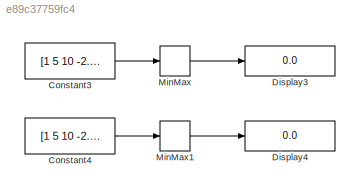
MODEL slx_e89c37759fc4
KIND model
CONFIG AbsTol = auto
CONFIG EnableMultiTasking = off
CONFIG FixedStep = auto
CONFIG MaxStep = auto
CONFIG MinStep = auto
CONFIG RelTol = 1e-3
CONFIG SampleTimeConstraint = Unconstrained
CONFIG Solver = VariableStepAuto
CONFIG SolverName = VariableStepAuto
CONFIG StartTime = 0.0
CONFIG StopTime = 10.0
BLOCK [Constant] Constant3
  Value = [1 5 10 -2.5 7 9]
BLOCK [Constant] Constant4
  Value = [1 5 10 -2.5 7 9]
BLOCK [Display] Display3
  Decimation = 1
  Ports = [1]
BLOCK [Display] Display4
  Decimation = 1
  Ports = [1]
BLOCK [MinMax] MinMax
  Ports = [1, 1]
BLOCK [MinMax] MinMax1
  Function = max
  Ports = [1, 1]
LINE Constant3:1 -> MinMax:1
LINE Constant4:1 -> MinMax1:1
LINE MinMax1:1 -> Display4:1
LINE MinMax:1 -> Display3:1
